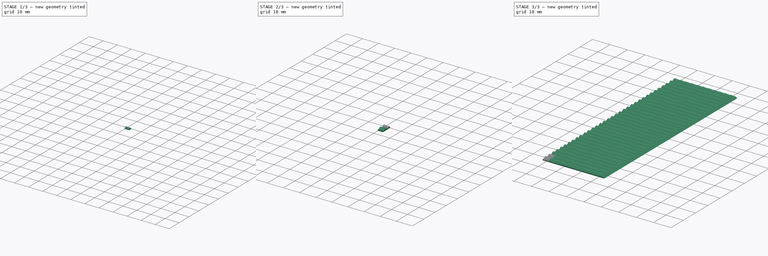
[diagram: build sequence overview — one tinted view per stage of 3, left to right]
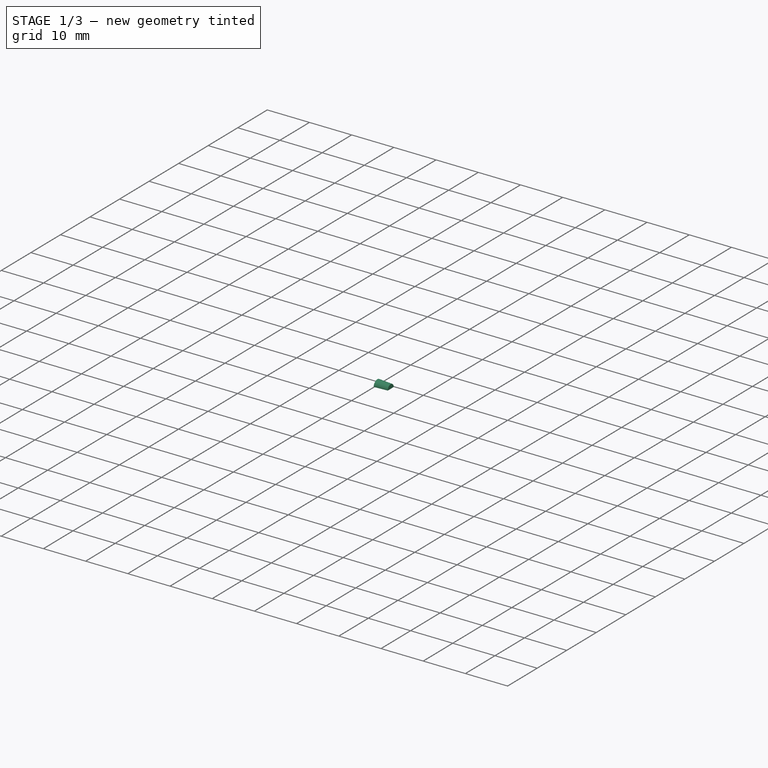
[diagram: stage 1 of 3 — iso view after this stage's code; geometry added in this stage tinted green]
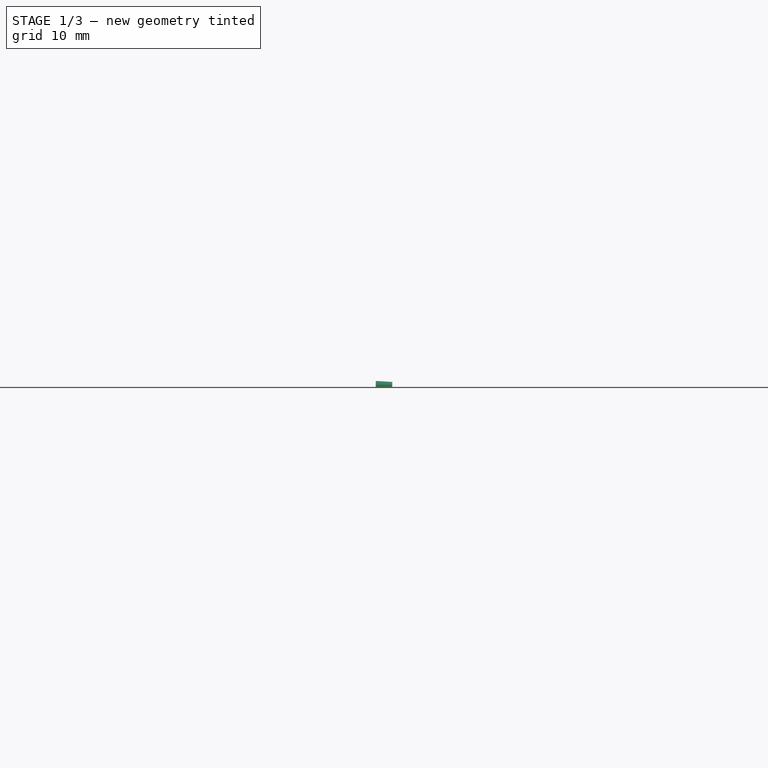
[diagram: stage 1 of 3 — front view after this stage's code; geometry added in this stage tinted green]
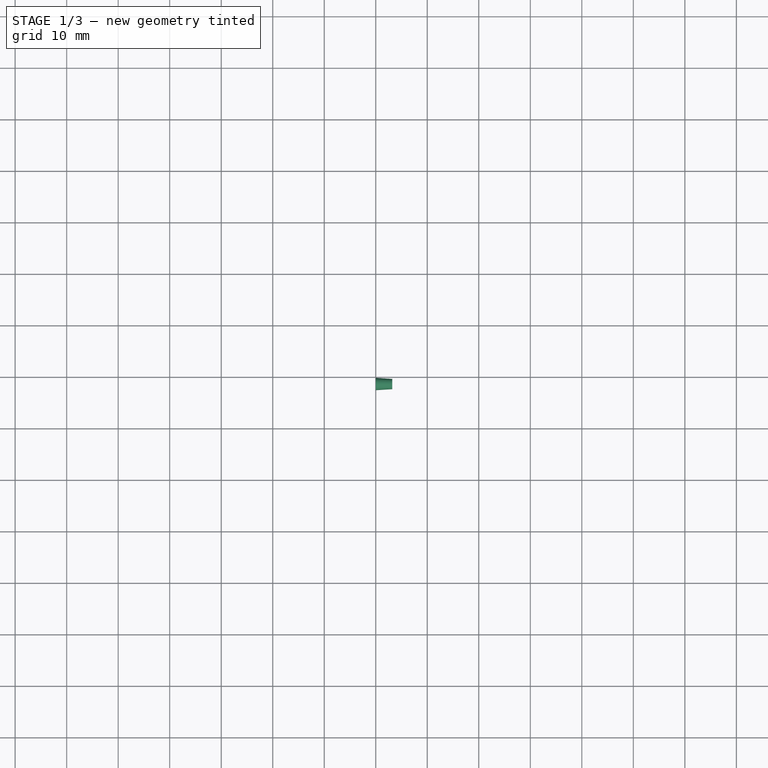
[diagram: stage 1 of 3 — top view after this stage's code; geometry added in this stage tinted green]
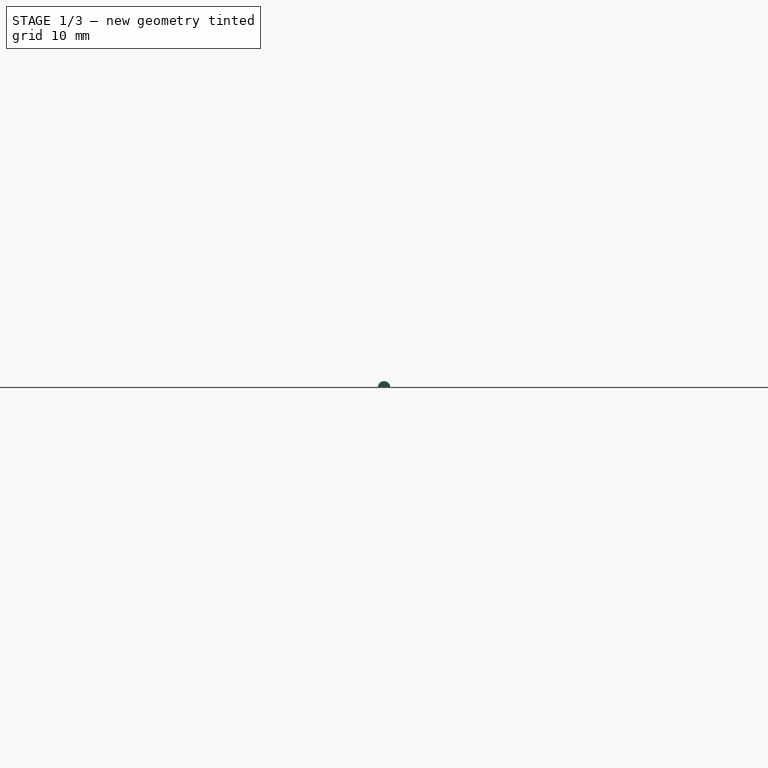
[diagram: stage 1 of 3 — right view after this stage's code; geometry added in this stage tinted green]
FCSTD DOCUMENT  (FreeCAD 0.16R6698 (Git))
Label: 4_P_Toit_Droite
License: All rights reserved
LicenseURL: http://en.wikipedia.org/wiki/All_rights_reserved
objects: Sketcher::SketchObject×2, Part::FeaturePython×2, PartDesign::Pad×1, Part::Cone×1, Part::MultiFuse×1, PartDesign::Pocket×1
note: 10 computed .brp shape members not serialized (recipe doc carries the construction recipe); baked Part::Feature solids carry a one-line shape summary decoded from their .brp

FEATURE [Part::Cone] Cone  label="Cône"
  Angle = 180
  Height = 3.2
  Placement = pos=(0,-4.3,0.2) rot=(0.57735,0.57735,0.57735;2.0944rad)
  Radius1 = 1.2
  Radius2 = 1
FEATURE [Part::FeaturePython] Clone  label="Clone of Cône"  # Draft clone (typed FeaturePython)
  Objects = -> [Cone]
  Placement = pos=(0,-1.3,0.2) rot=(0.57735,0.57735,0.57735;2.0944rad)
  Scale = (1,1,1)
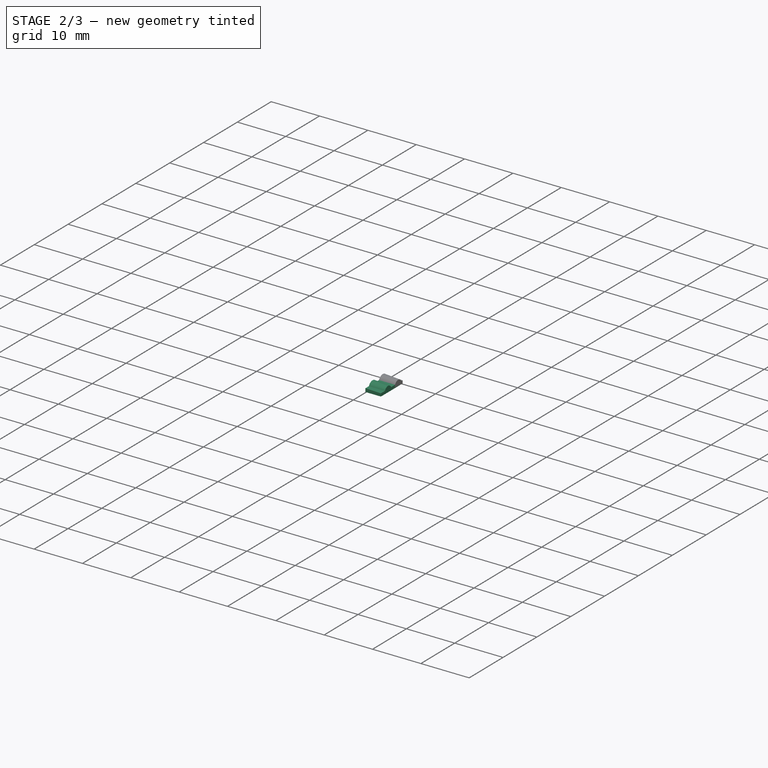
[diagram: stage 2 of 3 — iso view after this stage's code; geometry added in this stage tinted green]
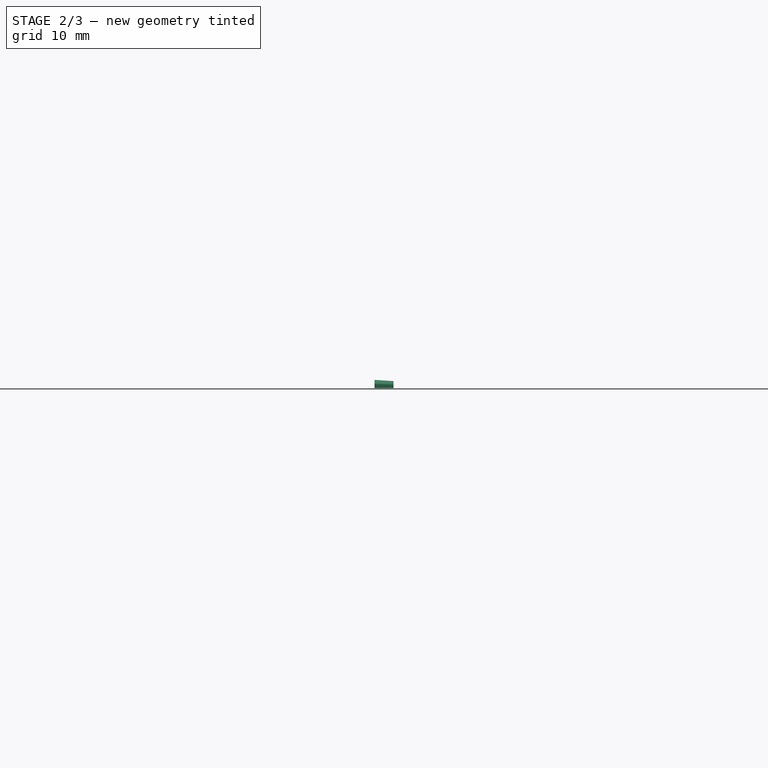
[diagram: stage 2 of 3 — front view after this stage's code; geometry added in this stage tinted green]
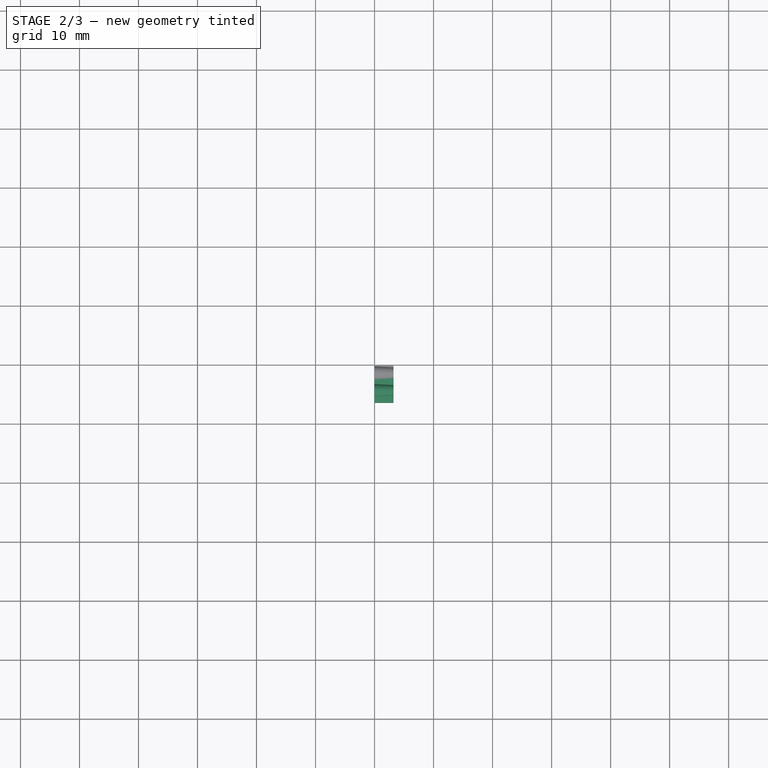
[diagram: stage 2 of 3 — top view after this stage's code; geometry added in this stage tinted green]
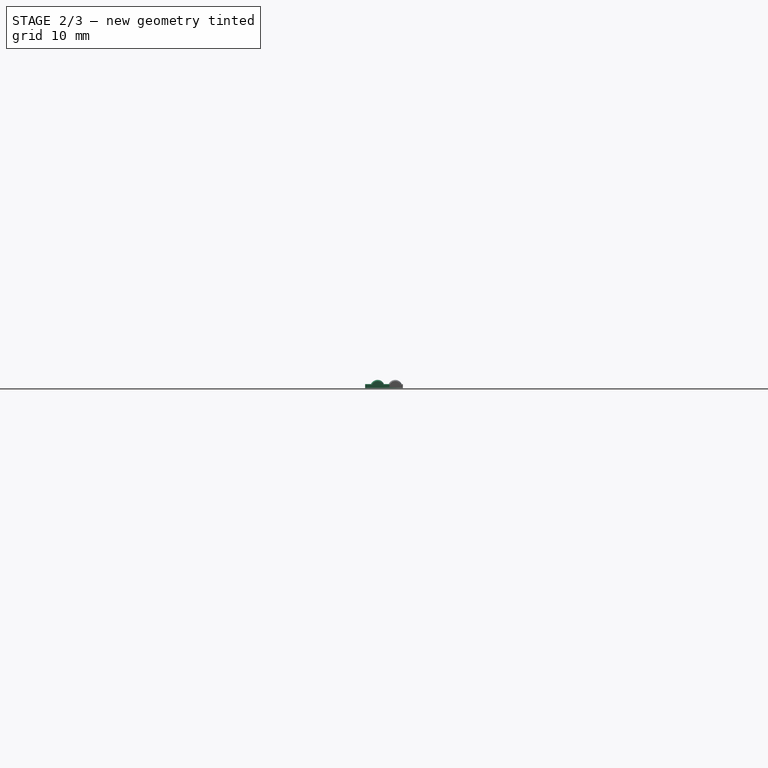
[diagram: stage 2 of 3 — right view after this stage's code; geometry added in this stage tinted green]
FEATURE [Sketcher::SketchObject] Sketch001
  Placement = pos=(0,0,0) rot=(1,0,0;1.5708rad)
  sketch-geometry (4):
    g0: LineSegment StartX=0 StartY=0.7 StartZ=0 EndX=0 EndY=0 EndZ=0
    g1: LineSegment StartX=0 StartY=0.7 StartZ=0 EndX=3.2 EndY=0.6 EndZ=0
    g2: LineSegment StartX=0 StartY=0 StartZ=0 EndX=3.2 EndY=0 EndZ=0
    g3: LineSegment StartX=3.2 StartY=0.6 StartZ=0 EndX=3.2 EndY=0 EndZ=0
  constraints (12):
    c: Vertical(g0)
    c: DistanceY(g0,g0) = 0.7
    c: Coincident(g1,g0)
    c: DistanceX(g0,g1) = 3.2
    c: DistanceY(g0,g1) = 0.6
    c: DistanceY(g3,g0) = -0.6
    c: Coincident(g0,g-1)
    c: Coincident(g2,g-1)
    c: Horizontal(g2)
    c: Coincident(g3,g2)
    c: Vertical(g3)
    c: Coincident(g3,g1)
FEATURE [PartDesign::Pad] Pad
  Length = 6.4
  Length2 = 100
  Placement = pos=(0,0,0) rot=(1,0,0;1.5708rad)
  Sketch = -> Sketch001
  Type = 0
FEATURE [Part::MultiFuse] Fusion
  Shapes = -> [Pad,Cone,Clone]
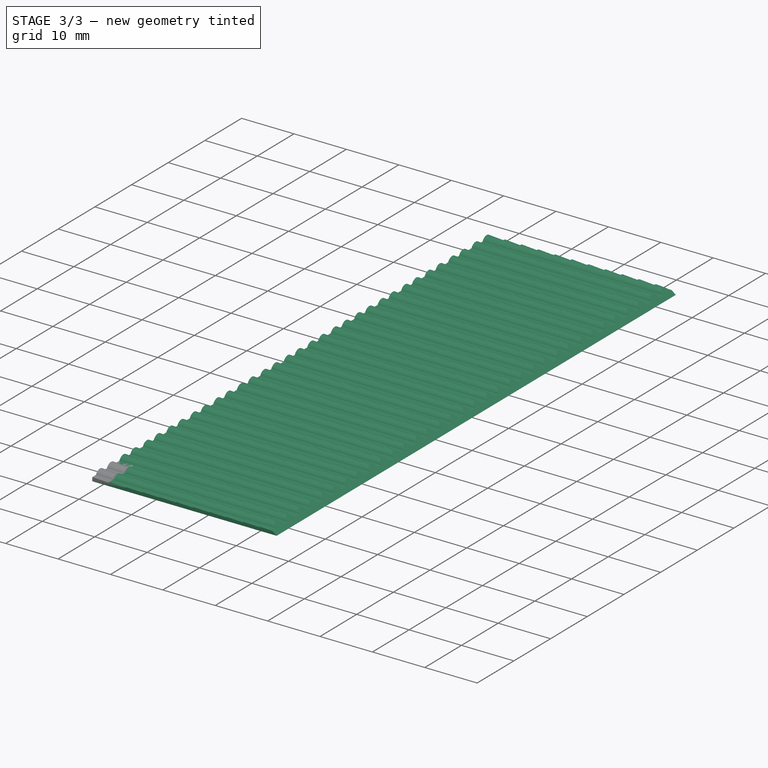
[diagram: stage 3 of 3 — iso view after this stage's code; geometry added in this stage tinted green]
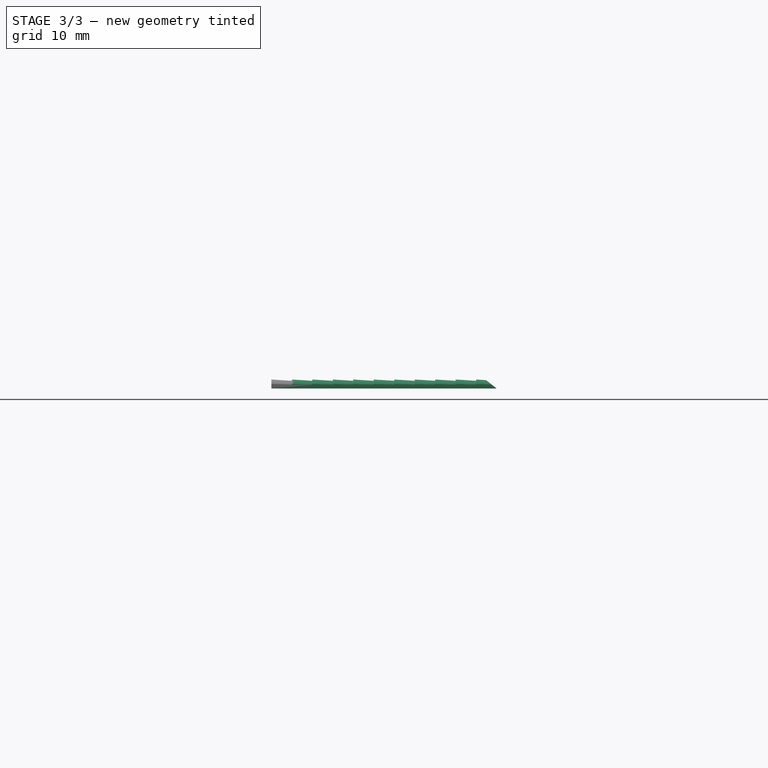
[diagram: stage 3 of 3 — front view after this stage's code; geometry added in this stage tinted green]
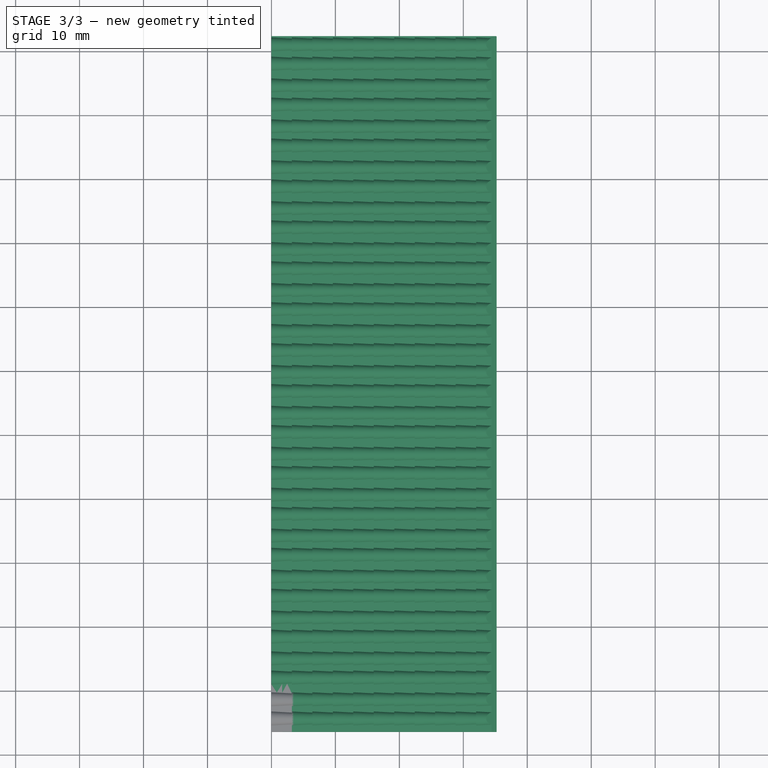
[diagram: stage 3 of 3 — top view after this stage's code; geometry added in this stage tinted green]
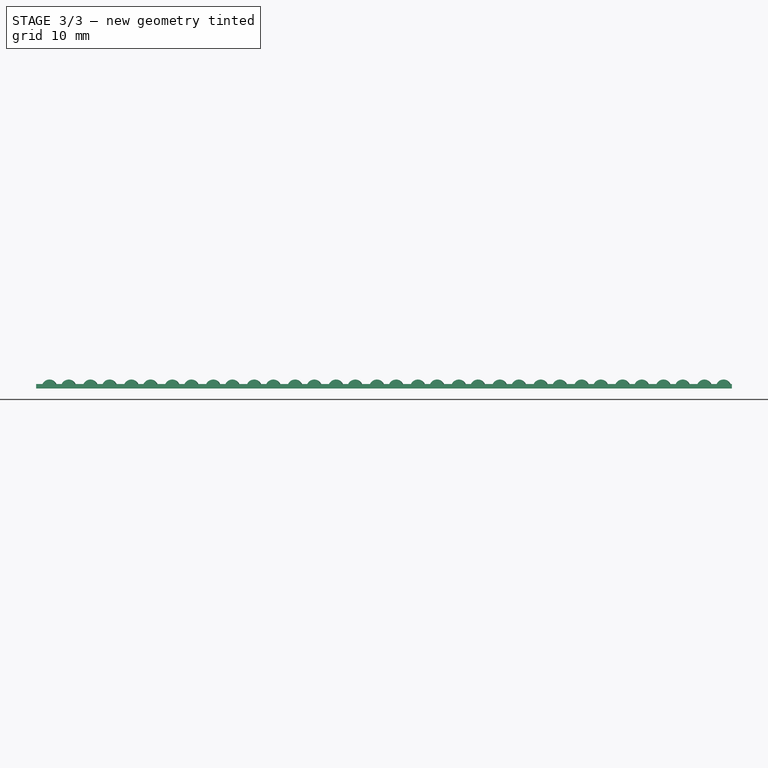
[diagram: stage 3 of 3 — right view after this stage's code; geometry added in this stage tinted green]
FEATURE [Part::FeaturePython] Array  # Draft array (typed FeaturePython)
  Angle = 360
  ArrayType = 0
  Axis = (0,0,1)
  Base = -> Fusion
  Center = (0,0,0)
  Fuse = true
  IntervalAxis = (0,0,0)
  IntervalX = (3.2,0,0)
  IntervalY = (0,6.4,0)
  IntervalZ = (0,0,0)
  NumberPolar = 1
  NumberX = 11
  NumberY = 17
  NumberZ = 1
FEATURE [Sketcher::SketchObject] Sketch
  ExternalGeometry = -> [Array]
  Placement = pos=(0,102.4,0) rot=(0,0.707107,0.707107;3.14159rad)
  Support = -> Array [Face774]
  sketch-geometry (3):
    g0: LineSegment StartX=-35.2 StartY=20 StartZ=0 EndX=-35.2 EndY=0 EndZ=0
    g1: LineSegment StartX=-35.2 StartY=0 StartZ=0 EndX=-10.2 EndY=20 EndZ=0
    g2: LineSegment StartX=-10.2 StartY=20 StartZ=0 EndX=-35.2 EndY=20 EndZ=0
  constraints (8):
    c: Vertical(g0)
    c: Coincident(g1,g0)
    c: Coincident(g2,g1)
    c: Coincident(g2,g0)
    c: Horizontal(g2)
    c: DistanceX(g0,g1) = 25
    c: DistanceY(g0,g0) = 20
    c: Coincident(g0,g-3)
FEATURE [PartDesign::Pocket] Pocket
  Length = 5
  Sketch = -> Sketch
  Type = 1
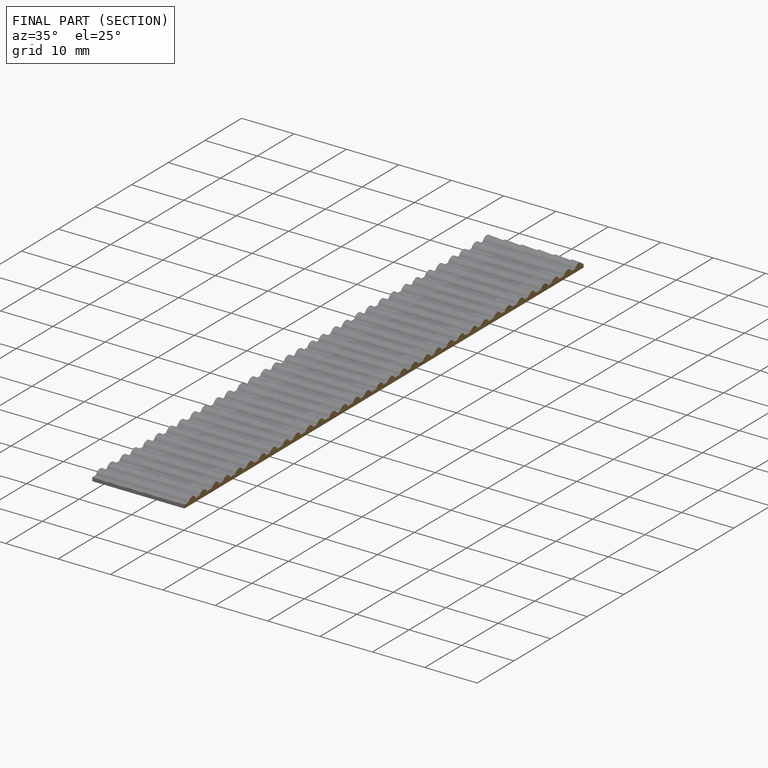
[diagram: finished part — half-section view (interior)]
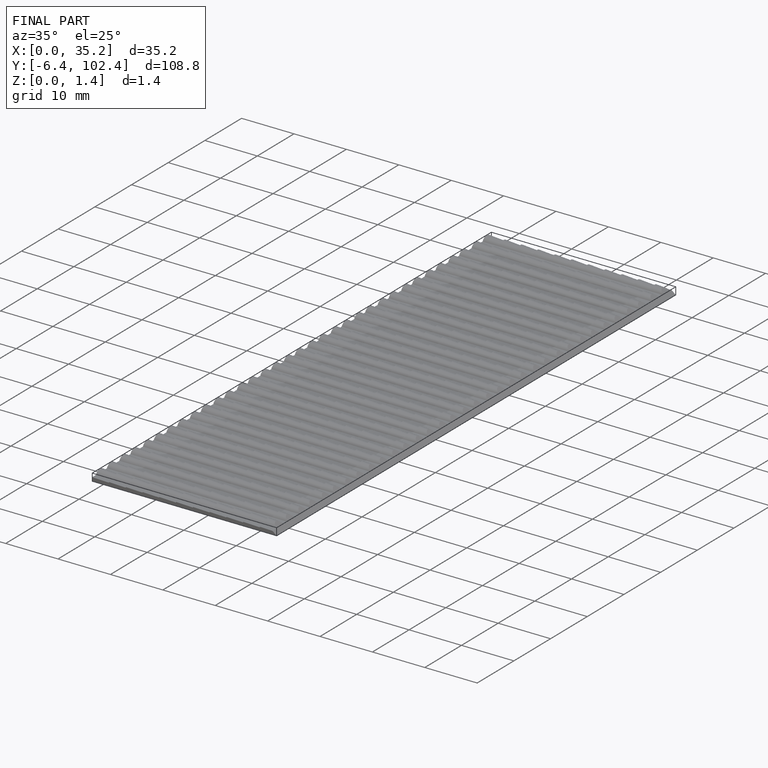
[diagram: finished part — iso view with bounding-box wireframe]
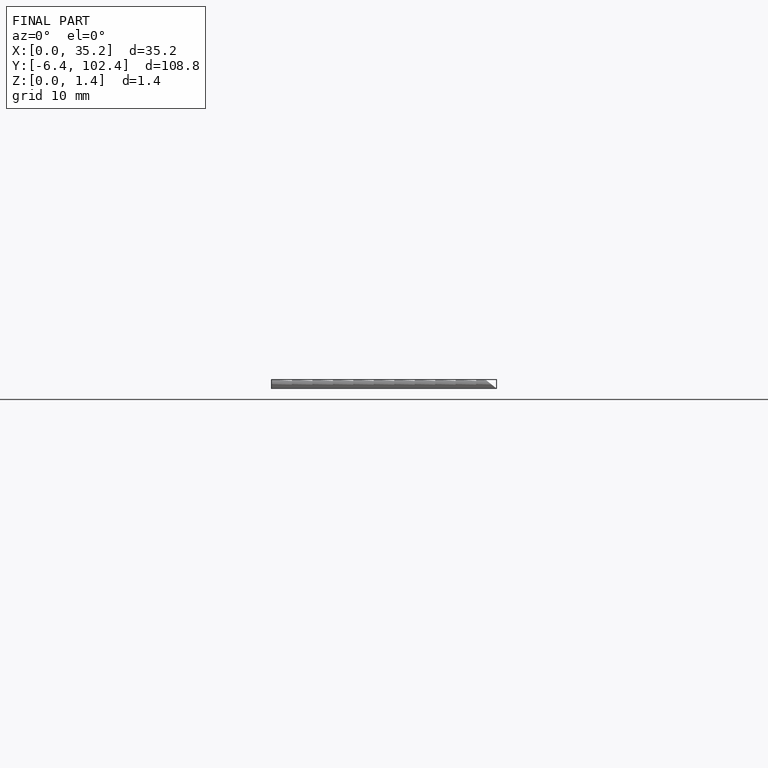
[diagram: finished part — front view with bounding-box wireframe]
